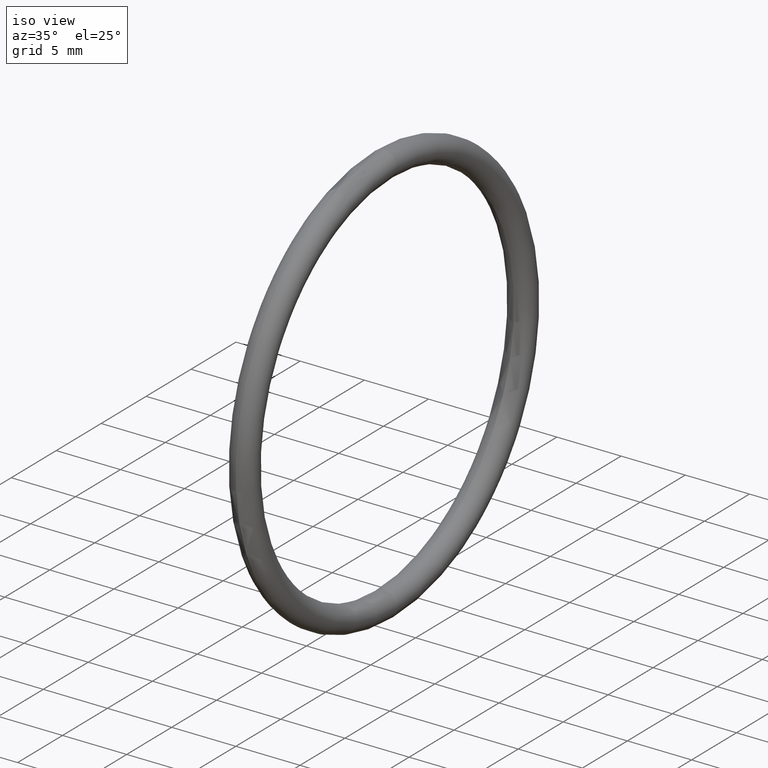
[diagram: clean part render]
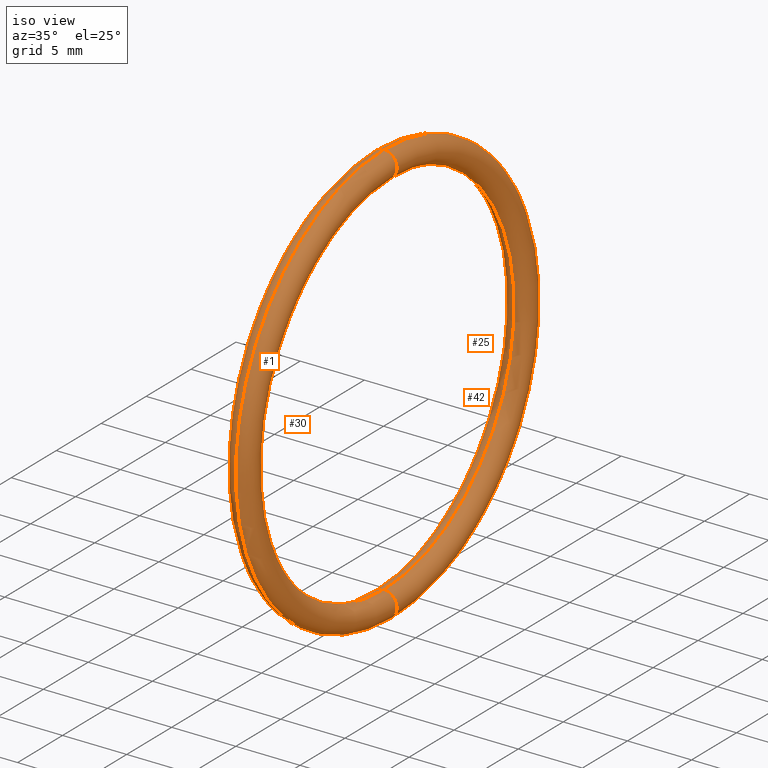
[diagram: same view with one multi-face feature highlighted, each face labeled with its STEP entity id]
A machine part, iso view. The highlighted faces form ONE feature: a constant-radius fillet chain: 4 tangent blend faces with common blend radius 1.016 mm. The faces share edges in the B-rep.
Their STEP definitions:
[1] entity #1 (Torus):
#1 = ADVANCED_FACE ( 'NONE', ( #34 ), #43, .T. ) ;
#2 = VERTEX_POINT ( 'NONE', #47 ) ;
#3 = VERTEX_POINT ( 'NONE', #81 ) ;
#4 = ORIENTED_EDGE ( 'NONE', *, *, #6, .T. ) ;
#5 = ORIENTED_EDGE ( 'NONE', *, *, #7, .F. ) ;
#6 = EDGE_CURVE ( 'NONE', #3, #9, #57, .T. ) ;
#7 = EDGE_CURVE ( 'NONE', #3, #2, #53, .T. ) ;
#8 = ORIENTED_EDGE ( 'NONE', *, *, #17, .F. ) ;
#9 = VERTEX_POINT ( 'NONE', #48 ) ;
#10 = ORIENTED_EDGE ( 'NONE', *, *, #40, .T. ) ;
#13 = EDGE_LOOP ( 'NONE', ( #5, #4, #10, #8 ) ) ;
#17 = EDGE_CURVE ( 'NONE', #2, #20, #65, .T. ) ;
#20 = VERTEX_POINT ( 'NONE', #60 ) ;
#34 = FACE_OUTER_BOUND ( 'NONE', #13, .T. ) ;
#40 = EDGE_CURVE ( 'NONE', #9, #20, #98, .T. ) ;
#43 = TOROIDAL_SURFACE ( 'NONE', #52, 0.6099999999999998800, 0.04000000000000000100 ) ;
#44 = DIRECTION ( 'NONE',  ( 0.0000000000000000000, 0.0000000000000000000, 1.000000000000000000 ) ) ;
#45 = DIRECTION ( 'NONE',  ( -1.000000000000000000, -0.0000000000000000000, -0.0000000000000000000 ) ) ;
#46 = CARTESIAN_POINT ( 'NONE',  ( 0.1000000000000000700, 0.0000000000000000000, 0.0000000000000000000 ) ) ;
#47 = CARTESIAN_POINT ( 'NONE',  ( 0.1000000000000000700, 6.980486755139912600E-017, -0.5699999999999999500 ) ) ;
#48 = CARTESIAN_POINT ( 'NONE',  ( 0.1000000000000000700, 0.0000000000000000000, 0.6499999999999999100 ) ) ;
#49 = DIRECTION ( 'NONE',  ( 0.0000000000000000000, -1.224646799147354900E-016, 1.000000000000000000 ) ) ;
#50 = DIRECTION ( 'NONE',  ( -0.0000000000000000000, 1.000000000000000000, 1.224646799147353200E-016 ) ) ;
#51 = AXIS2_PLACEMENT_3D ( 'NONE', #58, #50, #49 ) ;
#52 = AXIS2_PLACEMENT_3D ( 'NONE', #46, #45, #44 ) ;
#53 = CIRCLE ( 'NONE', #51, 0.03999999999999998000 ) ;
#54 = DIRECTION ( 'NONE',  ( 0.0000000000000000000, 0.0000000000000000000, 1.000000000000000000 ) ) ;
#55 = DIRECTION ( 'NONE',  ( -1.000000000000000000, -0.0000000000000000000, -0.0000000000000000000 ) ) ;
#56 = AXIS2_PLACEMENT_3D ( 'NONE', #88, #55, #54 ) ;
#57 = CIRCLE ( 'NONE', #56, 0.6499999999999999100 ) ;
#58 = CARTESIAN_POINT ( 'NONE',  ( 0.1000000000000000700, 7.470345474798854000E-017, -0.6099999999999998800 ) ) ;
#60 = CARTESIAN_POINT ( 'NONE',  ( 0.1000000000000000700, 0.0000000000000000000, 0.5699999999999999500 ) ) ;
#61 = DIRECTION ( 'NONE',  ( 0.0000000000000000000, 0.0000000000000000000, 1.000000000000000000 ) ) ;
#62 = DIRECTION ( 'NONE',  ( -1.000000000000000000, -0.0000000000000000000, -0.0000000000000000000 ) ) ;
#63 = CARTESIAN_POINT ( 'NONE',  ( 0.1000000000000000700, 0.0000000000000000000, 0.0000000000000000000 ) ) ;
#64 = AXIS2_PLACEMENT_3D ( 'NONE', #63, #62, #61 ) ;
#65 = CIRCLE ( 'NONE', #64, 0.5699999999999999500 ) ;
#81 = CARTESIAN_POINT ( 'NONE',  ( 0.1000000000000000700, 7.960204194457794200E-017, -0.6499999999999999100 ) ) ;
#88 = CARTESIAN_POINT ( 'NONE',  ( 0.1000000000000000700, 0.0000000000000000000, 0.0000000000000000000 ) ) ;
#89 = DIRECTION ( 'NONE',  ( 0.0000000000000000000, -1.000000000000000000, 0.0000000000000000000 ) ) ;
#98 = CIRCLE ( 'NONE', #141, 0.03999999999999998000 ) ;
#105 = DIRECTION ( 'NONE',  ( 0.0000000000000000000, 0.0000000000000000000, -1.000000000000000000 ) ) ;
#121 = CARTESIAN_POINT ( 'NONE',  ( 0.1000000000000000700, 0.0000000000000000000, 0.6099999999999998800 ) ) ;
#141 = AXIS2_PLACEMENT_3D ( 'NONE', #121, #89, #105 ) ;
[2] entity #30 (Torus):
#2 = VERTEX_POINT ( 'NONE', #47 ) ;
#3 = VERTEX_POINT ( 'NONE', #81 ) ;
#6 = EDGE_CURVE ( 'NONE', #3, #9, #57, .T. ) ;
#9 = VERTEX_POINT ( 'NONE', #48 ) ;
#11 = EDGE_LOOP ( 'NONE', ( #37, #38, #39, #12 ) ) ;
#12 = ORIENTED_EDGE ( 'NONE', *, *, #27, .T. ) ;
#17 = EDGE_CURVE ( 'NONE', #2, #20, #65, .T. ) ;
#20 = VERTEX_POINT ( 'NONE', #60 ) ;
#27 = EDGE_CURVE ( 'NONE', #20, #9, #75, .T. ) ;
#29 = EDGE_CURVE ( 'NONE', #2, #3, #70, .T. ) ;
#30 = ADVANCED_FACE ( 'NONE', ( #66 ), #109, .T. ) ;
#37 = ORIENTED_EDGE ( 'NONE', *, *, #6, .F. ) ;
#38 = ORIENTED_EDGE ( 'NONE', *, *, #29, .F. ) ;
#39 = ORIENTED_EDGE ( 'NONE', *, *, #17, .T. ) ;
#47 = CARTESIAN_POINT ( 'NONE',  ( 0.1000000000000000700, 6.980486755139912600E-017, -0.5699999999999999500 ) ) ;
#48 = CARTESIAN_POINT ( 'NONE',  ( 0.1000000000000000700, 0.0000000000000000000, 0.6499999999999999100 ) ) ;
#54 = DIRECTION ( 'NONE',  ( 0.0000000000000000000, 0.0000000000000000000, 1.000000000000000000 ) ) ;
#55 = DIRECTION ( 'NONE',  ( -1.000000000000000000, -0.0000000000000000000, -0.0000000000000000000 ) ) ;
#56 = AXIS2_PLACEMENT_3D ( 'NONE', #88, #55, #54 ) ;
#57 = CIRCLE ( 'NONE', #56, 0.6499999999999999100 ) ;
#60 = CARTESIAN_POINT ( 'NONE',  ( 0.1000000000000000700, 0.0000000000000000000, 0.5699999999999999500 ) ) ;
#61 = DIRECTION ( 'NONE',  ( 0.0000000000000000000, 0.0000000000000000000, 1.000000000000000000 ) ) ;
#62 = DIRECTION ( 'NONE',  ( -1.000000000000000000, -0.0000000000000000000, -0.0000000000000000000 ) ) ;
#63 = CARTESIAN_POINT ( 'NONE',  ( 0.1000000000000000700, 0.0000000000000000000, 0.0000000000000000000 ) ) ;
#64 = AXIS2_PLACEMENT_3D ( 'NONE', #63, #62, #61 ) ;
#65 = CIRCLE ( 'NONE', #64, 0.5699999999999999500 ) ;
#66 = FACE_OUTER_BOUND ( 'NONE', #11, .T. ) ;
#67 = DIRECTION ( 'NONE',  ( 0.0000000000000000000, -1.224646799147354900E-016, 1.000000000000000000 ) ) ;
#68 = DIRECTION ( 'NONE',  ( -0.0000000000000000000, 1.000000000000000000, 1.224646799147353200E-016 ) ) ;
#69 = AXIS2_PLACEMENT_3D ( 'NONE', #76, #68, #67 ) ;
#70 = CIRCLE ( 'NONE', #69, 0.03999999999999998000 ) ;
#71 = DIRECTION ( 'NONE',  ( 0.0000000000000000000, 0.0000000000000000000, -1.000000000000000000 ) ) ;
#72 = DIRECTION ( 'NONE',  ( 0.0000000000000000000, -1.000000000000000000, 0.0000000000000000000 ) ) ;
#73 = CARTESIAN_POINT ( 'NONE',  ( 0.1000000000000000700, 0.0000000000000000000, 0.6099999999999998800 ) ) ;
#74 = AXIS2_PLACEMENT_3D ( 'NONE', #73, #72, #71 ) ;
#75 = CIRCLE ( 'NONE', #74, 0.03999999999999998000 ) ;
#76 = CARTESIAN_POINT ( 'NONE',  ( 0.1000000000000000700, 7.470345474798854000E-017, -0.6099999999999998800 ) ) ;
#81 = CARTESIAN_POINT ( 'NONE',  ( 0.1000000000000000700, 7.960204194457794200E-017, -0.6499999999999999100 ) ) ;
#88 = CARTESIAN_POINT ( 'NONE',  ( 0.1000000000000000700, 0.0000000000000000000, 0.0000000000000000000 ) ) ;
#99 = AXIS2_PLACEMENT_3D ( 'NONE', #103, #144, #117 ) ;
#103 = CARTESIAN_POINT ( 'NONE',  ( 0.1000000000000000700, 0.0000000000000000000, 0.0000000000000000000 ) ) ;
#109 = TOROIDAL_SURFACE ( 'NONE', #99, 0.6099999999999998800, 0.04000000000000000100 ) ;
#117 = DIRECTION ( 'NONE',  ( 0.0000000000000000000, 0.0000000000000000000, 1.000000000000000000 ) ) ;
#144 = DIRECTION ( 'NONE',  ( -1.000000000000000000, -0.0000000000000000000, -0.0000000000000000000 ) ) ;
[3] entity #25 (Torus):
#2 = VERTEX_POINT ( 'NONE', #47 ) ;
#3 = VERTEX_POINT ( 'NONE', #81 ) ;
#9 = VERTEX_POINT ( 'NONE', #48 ) ;
#18 = ORIENTED_EDGE ( 'NONE', *, *, #24, .F. ) ;
#19 = ORIENTED_EDGE ( 'NONE', *, *, #41, .T. ) ;
#20 = VERTEX_POINT ( 'NONE', #60 ) ;
#24 = EDGE_CURVE ( 'NONE', #9, #3, #59, .T. ) ;
#25 = ADVANCED_FACE ( 'NONE', ( #87 ), #82, .T. ) ;
#26 = ORIENTED_EDGE ( 'NONE', *, *, #27, .F. ) ;
#27 = EDGE_CURVE ( 'NONE', #20, #9, #75, .T. ) ;
#28 = ORIENTED_EDGE ( 'NONE', *, *, #29, .T. ) ;
#29 = EDGE_CURVE ( 'NONE', #2, #3, #70, .T. ) ;
#35 = EDGE_LOOP ( 'NONE', ( #18, #26, #19, #28 ) ) ;
#41 = EDGE_CURVE ( 'NONE', #20, #2, #111, .T. ) ;
#47 = CARTESIAN_POINT ( 'NONE',  ( 0.1000000000000000700, 6.980486755139912600E-017, -0.5699999999999999500 ) ) ;
#48 = CARTESIAN_POINT ( 'NONE',  ( 0.1000000000000000700, 0.0000000000000000000, 0.6499999999999999100 ) ) ;
#59 = CIRCLE ( 'NONE', #86, 0.6499999999999999100 ) ;
#60 = CARTESIAN_POINT ( 'NONE',  ( 0.1000000000000000700, 0.0000000000000000000, 0.5699999999999999500 ) ) ;
#67 = DIRECTION ( 'NONE',  ( 0.0000000000000000000, -1.224646799147354900E-016, 1.000000000000000000 ) ) ;
#68 = DIRECTION ( 'NONE',  ( -0.0000000000000000000, 1.000000000000000000, 1.224646799147353200E-016 ) ) ;
#69 = AXIS2_PLACEMENT_3D ( 'NONE', #76, #68, #67 ) ;
#70 = CIRCLE ( 'NONE', #69, 0.03999999999999998000 ) ;
#71 = DIRECTION ( 'NONE',  ( 0.0000000000000000000, 0.0000000000000000000, -1.000000000000000000 ) ) ;
#72 = DIRECTION ( 'NONE',  ( 0.0000000000000000000, -1.000000000000000000, 0.0000000000000000000 ) ) ;
#73 = CARTESIAN_POINT ( 'NONE',  ( 0.1000000000000000700, 0.0000000000000000000, 0.6099999999999998800 ) ) ;
#74 = AXIS2_PLACEMENT_3D ( 'NONE', #73, #72, #71 ) ;
#75 = CIRCLE ( 'NONE', #74, 0.03999999999999998000 ) ;
#76 = CARTESIAN_POINT ( 'NONE',  ( 0.1000000000000000700, 7.470345474798854000E-017, -0.6099999999999998800 ) ) ;
#77 = DIRECTION ( 'NONE',  ( 0.0000000000000000000, 0.0000000000000000000, 1.000000000000000000 ) ) ;
#78 = DIRECTION ( 'NONE',  ( -1.000000000000000000, -0.0000000000000000000, -0.0000000000000000000 ) ) ;
#79 = CARTESIAN_POINT ( 'NONE',  ( 0.1000000000000000700, 0.0000000000000000000, 0.0000000000000000000 ) ) ;
#80 = AXIS2_PLACEMENT_3D ( 'NONE', #79, #78, #77 ) ;
#81 = CARTESIAN_POINT ( 'NONE',  ( 0.1000000000000000700, 7.960204194457794200E-017, -0.6499999999999999100 ) ) ;
#82 = TOROIDAL_SURFACE ( 'NONE', #80, 0.6099999999999998800, 0.04000000000000000100 ) ;
#83 = DIRECTION ( 'NONE',  ( 0.0000000000000000000, 0.0000000000000000000, 1.000000000000000000 ) ) ;
#84 = DIRECTION ( 'NONE',  ( -1.000000000000000000, -0.0000000000000000000, -0.0000000000000000000 ) ) ;
#85 = CARTESIAN_POINT ( 'NONE',  ( 0.1000000000000000700, 0.0000000000000000000, 0.0000000000000000000 ) ) ;
#86 = AXIS2_PLACEMENT_3D ( 'NONE', #85, #84, #83 ) ;
#87 = FACE_OUTER_BOUND ( 'NONE', #35, .T. ) ;
#96 = DIRECTION ( 'NONE',  ( -1.000000000000000000, -0.0000000000000000000, -0.0000000000000000000 ) ) ;
#97 = AXIS2_PLACEMENT_3D ( 'NONE', #104, #96, #102 ) ;
#102 = DIRECTION ( 'NONE',  ( 0.0000000000000000000, 0.0000000000000000000, 1.000000000000000000 ) ) ;
#104 = CARTESIAN_POINT ( 'NONE',  ( 0.1000000000000000700, 0.0000000000000000000, 0.0000000000000000000 ) ) ;
#111 = CIRCLE ( 'NONE', #97, 0.5699999999999999500 ) ;
[4] entity #42 (Torus):
#2 = VERTEX_POINT ( 'NONE', #47 ) ;
#3 = VERTEX_POINT ( 'NONE', #81 ) ;
#7 = EDGE_CURVE ( 'NONE', #3, #2, #53, .T. ) ;
#9 = VERTEX_POINT ( 'NONE', #48 ) ;
#20 = VERTEX_POINT ( 'NONE', #60 ) ;
#21 = ORIENTED_EDGE ( 'NONE', *, *, #40, .F. ) ;
#22 = ORIENTED_EDGE ( 'NONE', *, *, #7, .T. ) ;
#23 = ORIENTED_EDGE ( 'NONE', *, *, #24, .T. ) ;
#24 = EDGE_CURVE ( 'NONE', #9, #3, #59, .T. ) ;
#31 = ORIENTED_EDGE ( 'NONE', *, *, #41, .F. ) ;
#36 = EDGE_LOOP ( 'NONE', ( #21, #23, #22, #31 ) ) ;
#40 = EDGE_CURVE ( 'NONE', #9, #20, #98, .T. ) ;
#41 = EDGE_CURVE ( 'NONE', #20, #2, #111, .T. ) ;
#42 = ADVANCED_FACE ( 'NONE', ( #112 ), #101, .T. ) ;
#47 = CARTESIAN_POINT ( 'NONE',  ( 0.1000000000000000700, 6.980486755139912600E-017, -0.5699999999999999500 ) ) ;
#48 = CARTESIAN_POINT ( 'NONE',  ( 0.1000000000000000700, 0.0000000000000000000, 0.6499999999999999100 ) ) ;
#49 = DIRECTION ( 'NONE',  ( 0.0000000000000000000, -1.224646799147354900E-016, 1.000000000000000000 ) ) ;
#50 = DIRECTION ( 'NONE',  ( -0.0000000000000000000, 1.000000000000000000, 1.224646799147353200E-016 ) ) ;
#51 = AXIS2_PLACEMENT_3D ( 'NONE', #58, #50, #49 ) ;
#53 = CIRCLE ( 'NONE', #51, 0.03999999999999998000 ) ;
#58 = CARTESIAN_POINT ( 'NONE',  ( 0.1000000000000000700, 7.470345474798854000E-017, -0.6099999999999998800 ) ) ;
#59 = CIRCLE ( 'NONE', #86, 0.6499999999999999100 ) ;
#60 = CARTESIAN_POINT ( 'NONE',  ( 0.1000000000000000700, 0.0000000000000000000, 0.5699999999999999500 ) ) ;
#81 = CARTESIAN_POINT ( 'NONE',  ( 0.1000000000000000700, 7.960204194457794200E-017, -0.6499999999999999100 ) ) ;
#83 = DIRECTION ( 'NONE',  ( 0.0000000000000000000, 0.0000000000000000000, 1.000000000000000000 ) ) ;
#84 = DIRECTION ( 'NONE',  ( -1.000000000000000000, -0.0000000000000000000, -0.0000000000000000000 ) ) ;
#85 = CARTESIAN_POINT ( 'NONE',  ( 0.1000000000000000700, 0.0000000000000000000, 0.0000000000000000000 ) ) ;
#86 = AXIS2_PLACEMENT_3D ( 'NONE', #85, #84, #83 ) ;
#89 = DIRECTION ( 'NONE',  ( 0.0000000000000000000, -1.000000000000000000, 0.0000000000000000000 ) ) ;
#96 = DIRECTION ( 'NONE',  ( -1.000000000000000000, -0.0000000000000000000, -0.0000000000000000000 ) ) ;
#97 = AXIS2_PLACEMENT_3D ( 'NONE', #104, #96, #102 ) ;
#98 = CIRCLE ( 'NONE', #141, 0.03999999999999998000 ) ;
#100 = AXIS2_PLACEMENT_3D ( 'NONE', #115, #114, #113 ) ;
#101 = TOROIDAL_SURFACE ( 'NONE', #100, 0.6099999999999998800, 0.04000000000000000100 ) ;
#102 = DIRECTION ( 'NONE',  ( 0.0000000000000000000, 0.0000000000000000000, 1.000000000000000000 ) ) ;
#104 = CARTESIAN_POINT ( 'NONE',  ( 0.1000000000000000700, 0.0000000000000000000, 0.0000000000000000000 ) ) ;
#105 = DIRECTION ( 'NONE',  ( 0.0000000000000000000, 0.0000000000000000000, -1.000000000000000000 ) ) ;
#111 = CIRCLE ( 'NONE', #97, 0.5699999999999999500 ) ;
#112 = FACE_OUTER_BOUND ( 'NONE', #36, .T. ) ;
#113 = DIRECTION ( 'NONE',  ( 0.0000000000000000000, 0.0000000000000000000, 1.000000000000000000 ) ) ;
#114 = DIRECTION ( 'NONE',  ( -1.000000000000000000, -0.0000000000000000000, -0.0000000000000000000 ) ) ;
#115 = CARTESIAN_POINT ( 'NONE',  ( 0.1000000000000000700, 0.0000000000000000000, 0.0000000000000000000 ) ) ;
#121 = CARTESIAN_POINT ( 'NONE',  ( 0.1000000000000000700, 0.0000000000000000000, 0.6099999999999998800 ) ) ;
#141 = AXIS2_PLACEMENT_3D ( 'NONE', #121, #89, #105 ) ;